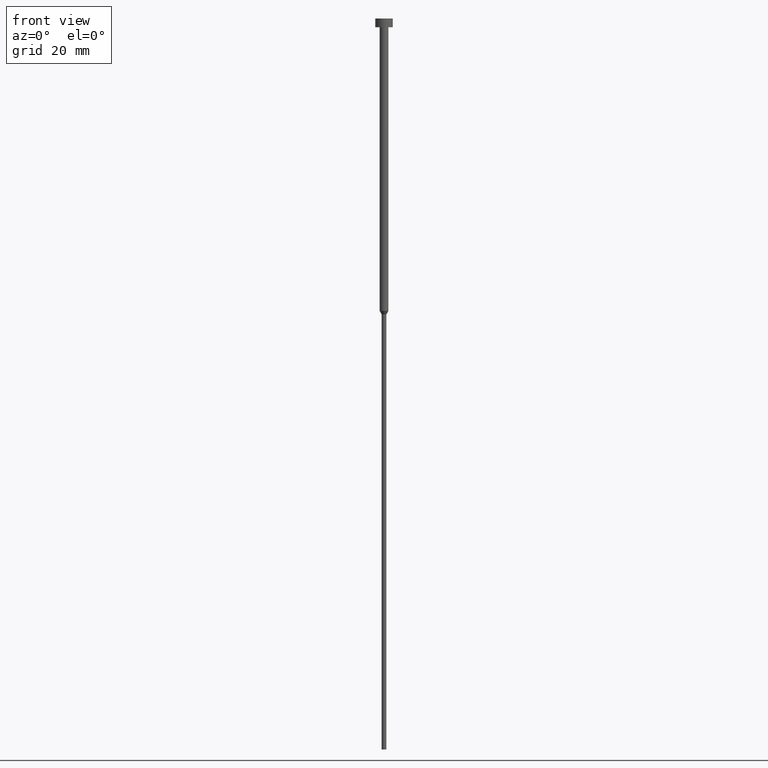
[diagram: clean part render]
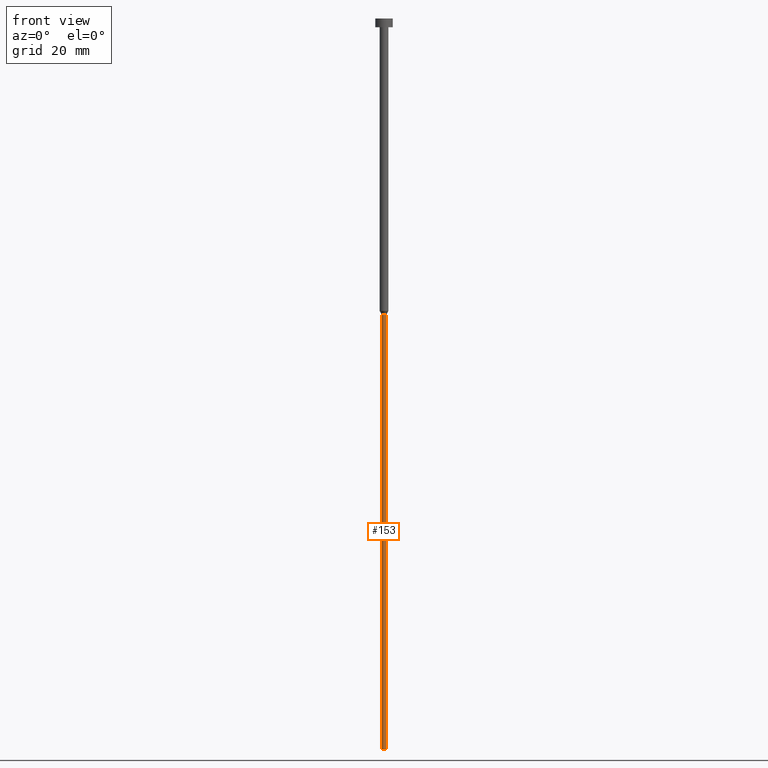
[diagram: same view with one face highlighted and labeled with its STEP entity id]
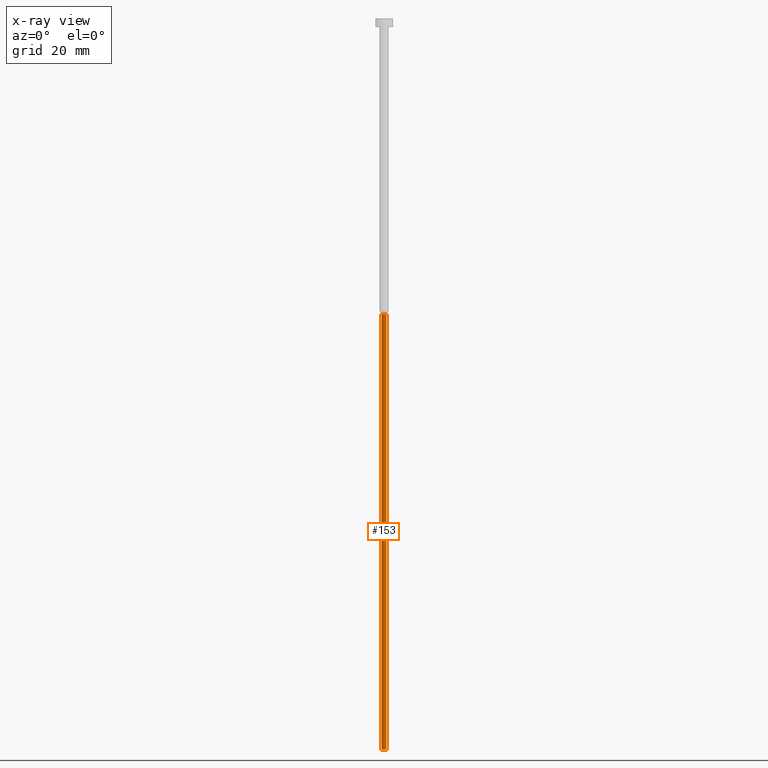
[diagram: x-ray of the same camera — body ghosted, the highlighted face saturated]
A machine part, front view. The second image highlights one B-rep face of the part: STEP entity #153.
The next image is the same camera in x-ray: the body ghosted, the highlighted face saturated — about 0% of this face is hidden behind the body in this view.
In plain terms, the highlighted cylindrical surface (edge-blend (fillet) strip) has radius 0.8 mm, axis along (-0, -0, 1).
Its self-contained STEP definition (entity closure, byte-faithful):
#1 = VECTOR ( 'NONE', #136, 1000.000000000000000 ) ;
#2 = DIRECTION ( 'NONE',  ( -0.000000000000000000, -0.000000000000000000, 1.000000000000000000 ) ) ;
#5 = EDGE_CURVE ( 'NONE', #168, #71, #169, .T. ) ;
#33 = CARTESIAN_POINT ( 'NONE',  ( 0.8000000000000000444, 0.000000000000000000, 0.000000000000000000 ) ) ;
#53 = ORIENTED_EDGE ( 'NONE', *, *, #72, .F. ) ;
#54 = AXIS2_PLACEMENT_3D ( 'NONE', #301, #165, #140 ) ;
#60 = CARTESIAN_POINT ( 'NONE',  ( -0.8000000000000002665, 9.797174393178828616E-17, -101.2124355652982075 ) ) ;
#65 = CARTESIAN_POINT ( 'NONE',  ( -0.7999999999999999334, 9.797174393178826150E-17, -250.0000000000000000 ) ) ;
#71 = VERTEX_POINT ( 'NONE', #83 ) ;
#72 = EDGE_CURVE ( 'NONE', #348, #318, #93, .T. ) ;
#83 = CARTESIAN_POINT ( 'NONE',  ( 0.7999999999999999334, 0.000000000000000000, -250.0000000000000000 ) ) ;
#85 = DIRECTION ( 'NONE',  ( -0.000000000000000000, -0.000000000000000000, 1.000000000000000000 ) ) ;
#86 = AXIS2_PLACEMENT_3D ( 'NONE', #221, #85, #247 ) ;
#90 = LINE ( 'NONE', #33, #1 ) ;
#93 = CIRCLE ( 'NONE', #86, 0.8000000000000001554 ) ;
#99 = EDGE_LOOP ( 'NONE', ( #293, #109, #260, #53 ) ) ;
#107 = CARTESIAN_POINT ( 'NONE',  ( 0.000000000000000000, 0.000000000000000000, -250.0000000000000000 ) ) ;
#109 = ORIENTED_EDGE ( 'NONE', *, *, #5, .T. ) ;
#110 = EDGE_CURVE ( 'NONE', #71, #318, #90, .T. ) ;
#112 = VECTOR ( 'NONE', #308, 1000.000000000000000 ) ;
#136 = DIRECTION ( 'NONE',  ( -0.000000000000000000, -0.000000000000000000, 1.000000000000000000 ) ) ;
#140 = DIRECTION ( 'NONE',  ( 1.000000000000000000, 0.000000000000000000, 0.000000000000000000 ) ) ;
#153 = ADVANCED_FACE ( 'NONE', ( #277 ), #193, .T. ) ;
#165 = DIRECTION ( 'NONE',  ( -0.000000000000000000, -0.000000000000000000, 1.000000000000000000 ) ) ;
#168 = VERTEX_POINT ( 'NONE', #65 ) ;
#169 = CIRCLE ( 'NONE', #207, 0.7999999999999999334 ) ;
#172 = LINE ( 'NONE', #175, #112 ) ;
#175 = CARTESIAN_POINT ( 'NONE',  ( -0.8000000000000000444, 9.797174393178826150E-17, 0.000000000000000000 ) ) ;
#193 = CYLINDRICAL_SURFACE ( 'NONE', #54, 0.8000000000000000444 ) ;
#207 = AXIS2_PLACEMENT_3D ( 'NONE', #107, #2, #245 ) ;
#221 = CARTESIAN_POINT ( 'NONE',  ( 0.000000000000000000, 0.000000000000000000, -101.2124355652982075 ) ) ;
#245 = DIRECTION ( 'NONE',  ( 1.000000000000000000, 0.000000000000000000, 0.000000000000000000 ) ) ;
#247 = DIRECTION ( 'NONE',  ( 1.000000000000000000, 0.000000000000000000, 0.000000000000000000 ) ) ;
#260 = ORIENTED_EDGE ( 'NONE', *, *, #110, .T. ) ;
#277 = FACE_OUTER_BOUND ( 'NONE', #99, .T. ) ;
#278 = CARTESIAN_POINT ( 'NONE',  ( 0.8000000000000001554, 0.000000000000000000, -101.2124355652982075 ) ) ;
#293 = ORIENTED_EDGE ( 'NONE', *, *, #339, .F. ) ;
#301 = CARTESIAN_POINT ( 'NONE',  ( 0.000000000000000000, 0.000000000000000000, 0.000000000000000000 ) ) ;
#308 = DIRECTION ( 'NONE',  ( -0.000000000000000000, -0.000000000000000000, 1.000000000000000000 ) ) ;
#318 = VERTEX_POINT ( 'NONE', #278 ) ;
#339 = EDGE_CURVE ( 'NONE', #168, #348, #172, .T. ) ;
#348 = VERTEX_POINT ( 'NONE', #60 ) ;